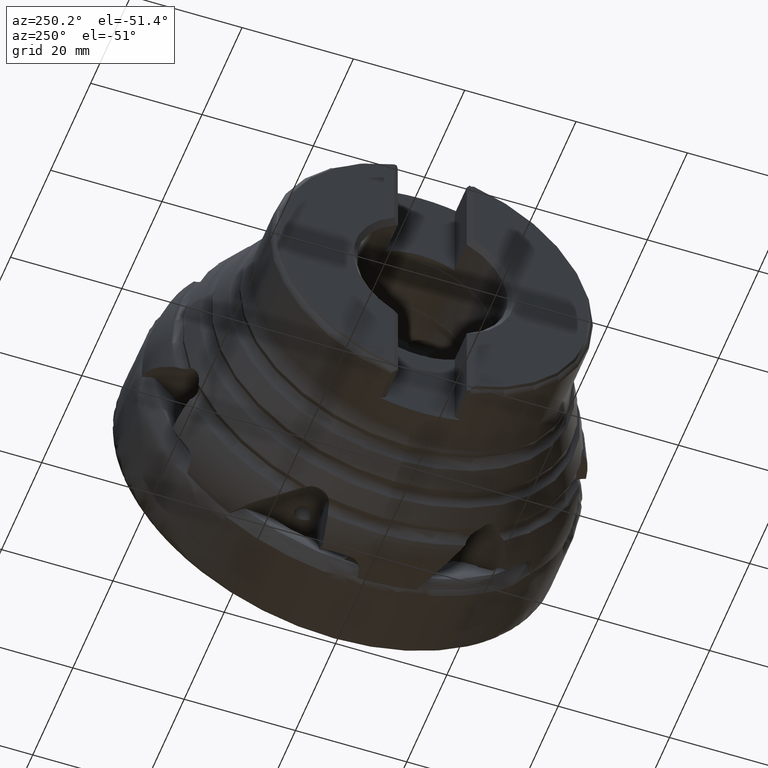
[diagram: clean part render]
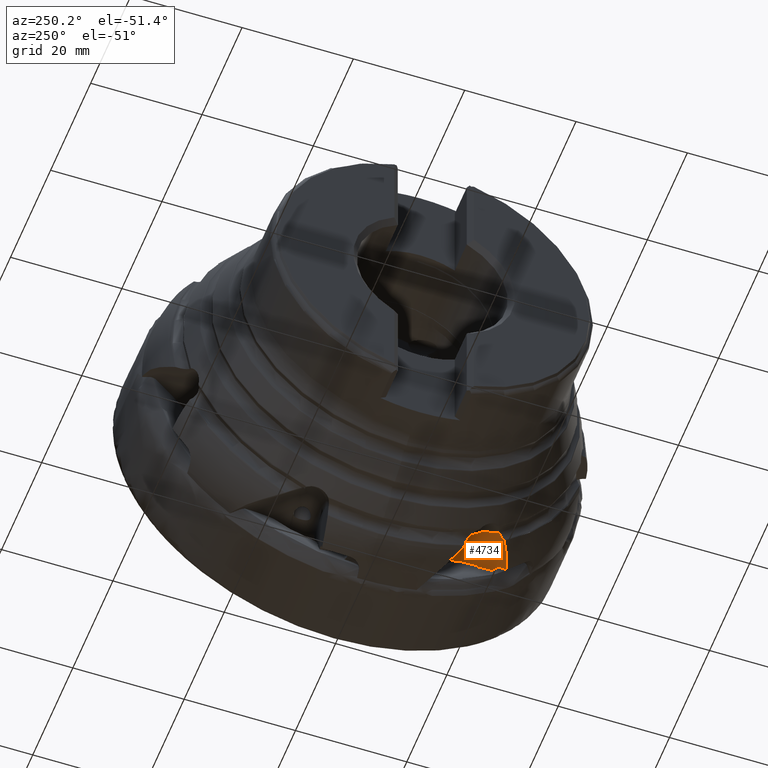
[diagram: same view with one face highlighted and labeled with its STEP entity id]
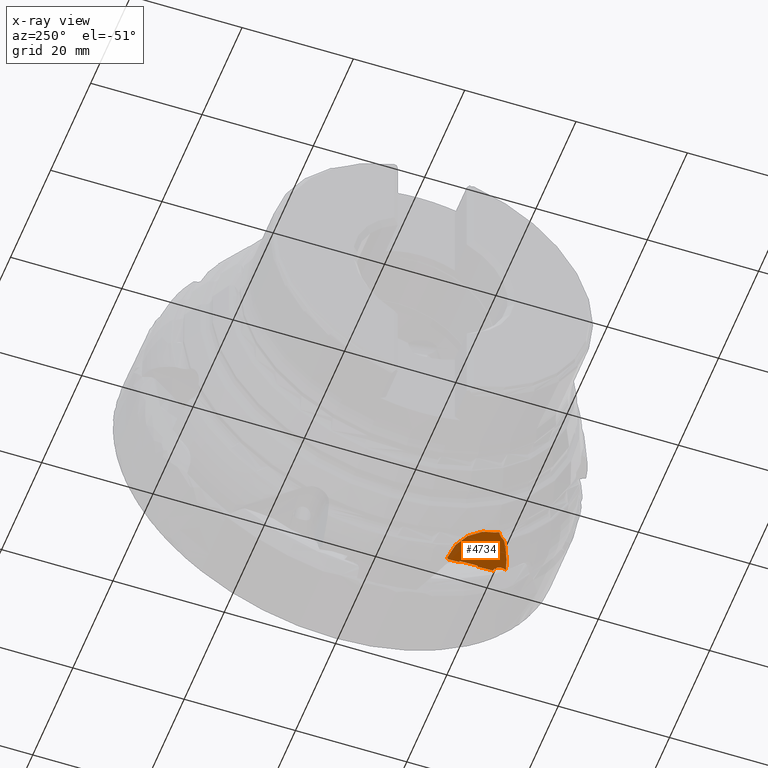
[diagram: x-ray of the same camera — body ghosted, the highlighted face saturated]
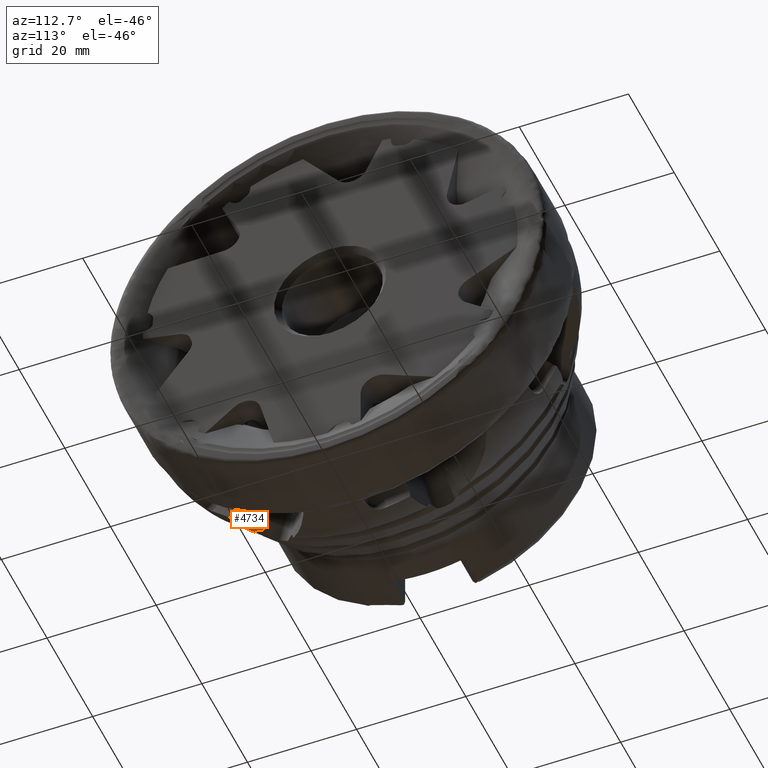
[diagram: same view with one face highlighted and labeled with its STEP entity id]
A machine part, auxiliary view. The second image highlights one B-rep face of the part: STEP entity #4734.
The next image is the same camera in x-ray: the body ghosted, the highlighted face saturated — about 5% of this face is hidden behind the body in this view.
A second angle (auxiliary view) of the same face is appended — the face is thin or edge-on in the first view.
In plain terms, the highlighted planar face has unit normal (-0.1638, -0.6151, 0.7713).
Its self-contained STEP definition (entity closure, byte-faithful):
#97 = ORIENTED_EDGE ( 'NONE', *, *, #9055, .T. ) ;
#346 = ORIENTED_EDGE ( 'NONE', *, *, #15646, .T. ) ;
#565 = CARTESIAN_POINT ( 'NONE',  ( -21.14160285398321900, -22.73550970672356900, -29.71567119495712800 ) ) ;
#817 = CARTESIAN_POINT ( 'NONE',  ( -12.43261193752961800, -21.00088352587655600, -26.48227463218263700 ) ) ;
#1045 = DIRECTION ( 'NONE',  ( 0.1638425078055066300, 0.6150642780949868700, -0.7712662098442374400 ) ) ;
#1101 = DIRECTION ( 'NONE',  ( 0.8611258527220790900, -0.4705966382831377500, -0.1923566214360238600 ) ) ;
#1162 = CARTESIAN_POINT ( 'NONE',  ( -9.198426334395453100, -16.72364546987626400, -22.38424288032031800 ) ) ;
#1200 = CARTESIAN_POINT ( 'NONE',  ( -10.50754404923196200, -18.47031920036145500, -24.05526869484428700 ) ) ;
#1320 = CARTESIAN_POINT ( 'NONE',  ( -13.92128072467505700, -23.27830195864172300, -28.61469782232702000 ) ) ;
#1398 = CARTESIAN_POINT ( 'NONE',  ( -8.179293523514667500, -30.09575054204051300, -32.83164323891602300 ) ) ;
#1466 = PLANE ( 'NONE',  #12133 ) ;
#1661 = ORIENTED_EDGE ( 'NONE', *, *, #7680, .F. ) ;
#1953 = CARTESIAN_POINT ( 'NONE',  ( -8.630400510395633200, -16.32326790388483300, -21.94428491280752500 ) ) ;
#2159 = CARTESIAN_POINT ( 'NONE',  ( -20.92614182972204200, -22.85685348724444000, -29.76666856748046500 ) ) ;
#2162 = CARTESIAN_POINT ( 'NONE',  ( -9.133446256174314800, -16.98453789135284700, -22.57849372132767100 ) ) ;
#2210 = B_SPLINE_CURVE_WITH_KNOTS ( 'NONE', 3,
 ( #13301, #7685, #9665, #13629, #11565, #23155 ),
 .UNSPECIFIED., .F., .F.,
 ( 4, 2, 4 ),
 ( 0.002660664059138238200, 0.005175454664293918000, 0.007690245269449598100 ),
 .UNSPECIFIED. ) ;
#2442 = EDGE_CURVE ( 'NONE', #7026, #3863, #4425, .T. ) ;
#2645 = B_SPLINE_CURVE_WITH_KNOTS ( 'NONE', 3,
 ( #21751, #10331, #7194, #20501 ),
 .UNSPECIFIED., .F., .F.,
 ( 4, 4 ),
 ( 3.382036590127678300E-006, 0.0002985361459002456200 ),
 .UNSPECIFIED. ) ;
#2746 = CARTESIAN_POINT ( 'NONE',  ( -9.133446256174314800, -16.98453789135284700, -22.57849372132767100 ) ) ;
#2853 = EDGE_CURVE ( 'NONE', #17252, #14294, #16914, .T. ) ;
#3394 = LINE ( 'NONE', #817, #9901 ) ;
#3843 = DIRECTION ( 'NONE',  ( 0.4812669720744132100, 0.6326410813787726200, 0.6067514843345858100 ) ) ;
#3863 = VERTEX_POINT ( 'NONE', #7378 ) ;
#4013 = EDGE_CURVE ( 'NONE', #22316, #11634, #3394, .T. ) ;
#4425 = B_SPLINE_CURVE_WITH_KNOTS ( 'NONE', 3,
 ( #16306, #10478, #19976, #4747, #16483, #10722, #23806, #18061 ),
 .UNSPECIFIED., .F., .F.,
 ( 4, 2, 2, 4 ),
 ( 0.003401072351581574800, 0.004117807505345807100, 0.004476175082227921300, 0.004834542659110034600 ),
 .UNSPECIFIED. ) ;
#4734 = ADVANCED_FACE ( 'NONE', ( #6349 ), #1466, .F. ) ;
#4747 = CARTESIAN_POINT ( 'NONE',  ( -21.82285997878989300, -21.77611186915676800, -29.09529854479673700 ) ) ;
#4899 = VERTEX_POINT ( 'NONE', #15061 ) ;
#5127 = VECTOR ( 'NONE', #18658, 1000.000000000000000 ) ;
#5234 = EDGE_CURVE ( 'NONE', #3863, #17924, #21496, .T. ) ;
#5686 = VECTOR ( 'NONE', #17801, 1000.000000000000000 ) ;
#5870 = B_SPLINE_CURVE_WITH_KNOTS ( 'NONE', 3,
 ( #23183, #2159, #565, #6139 ),
 .UNSPECIFIED., .F., .F.,
 ( 4, 4 ),
 ( 2.342862192463819400E-007, 0.0007576879588108050000 ),
 .UNSPECIFIED. ) ;
#5985 = EDGE_CURVE ( 'NONE', #20947, #17924, #24493, .T. ) ;
#6118 = CARTESIAN_POINT ( 'NONE',  ( -21.51366886119037900, -22.41158329713941200, -29.53638765600278800 ) ) ;
#6139 = CARTESIAN_POINT ( 'NONE',  ( -21.35698739462251800, -22.61406954113725500, -29.66458071025255400 ) ) ;
#6181 = CARTESIAN_POINT ( 'NONE',  ( -12.43261193752961800, -21.00088352587655600, -26.48227463218263700 ) ) ;
#6349 = FACE_OUTER_BOUND ( 'NONE', #12347, .T. ) ;
#6594 = CARTESIAN_POINT ( 'NONE',  ( -8.179293523514667500, -30.09575054204051300, -32.83164323891602300 ) ) ;
#6629 = LINE ( 'NONE', #1953, #5127 ) ;
#6810 = VERTEX_POINT ( 'NONE', #20376 ) ;
#7026 = VERTEX_POINT ( 'NONE', #6118 ) ;
#7194 = CARTESIAN_POINT ( 'NONE',  ( -21.50085350608038900, -22.48937823493660900, -29.59570464247529700 ) ) ;
#7378 = CARTESIAN_POINT ( 'NONE',  ( -22.26003932203251200, -21.41834940323840500, -28.90286388218926900 ) ) ;
#7680 = EDGE_CURVE ( 'NONE', #12510, #20947, #20297, .T. ) ;
#7685 = CARTESIAN_POINT ( 'NONE',  ( -16.86014728812010000, -24.64190338900503700, -30.32644634752549700 ) ) ;
#8477 = CARTESIAN_POINT ( 'NONE',  ( -9.198426334395453100, -16.72364546987626400, -22.38424288032031800 ) ) ;
#8693 = ORIENTED_EDGE ( 'NONE', *, *, #2442, .T. ) ;
#9055 = EDGE_CURVE ( 'NONE', #6810, #4899, #5870, .T. ) ;
#9210 = ORIENTED_EDGE ( 'NONE', *, *, #5985, .F. ) ;
#9569 = ORIENTED_EDGE ( 'NONE', *, *, #2853, .T. ) ;
#9665 = CARTESIAN_POINT ( 'NONE',  ( -17.65977729811028500, -24.37941856146888900, -30.28698960169940700 ) ) ;
#9901 = VECTOR ( 'NONE', #23676, 1000.000000000000000 ) ;
#10304 = VERTEX_POINT ( 'NONE', #1200 ) ;
#10331 = CARTESIAN_POINT ( 'NONE',  ( -21.44199234680527500, -22.56614123839978300, -29.64441703371191000 ) ) ;
#10478 = CARTESIAN_POINT ( 'NONE',  ( -21.54484778670939000, -22.22231327297335200, -29.39207328567210500 ) ) ;
#10722 = CARTESIAN_POINT ( 'NONE',  ( -22.06567063947989400, -21.54685656365656900, -28.96405457207297100 ) ) ;
#11233 = EDGE_CURVE ( 'NONE', #10304, #12510, #21335, .T. ) ;
#11398 = ORIENTED_EDGE ( 'NONE', *, *, #17183, .T. ) ;
#11442 = CARTESIAN_POINT ( 'NONE',  ( -13.92128072467505700, -23.27830195864172300, -28.61469782232702000 ) ) ;
#11565 = CARTESIAN_POINT ( 'NONE',  ( -19.98468851705155900, -23.38647149710774200, -29.98902894705365800 ) ) ;
#11634 = VERTEX_POINT ( 'NONE', #21303 ) ;
#11761 = CARTESIAN_POINT ( 'NONE',  ( -16.04868169841183300, -24.85220062233698700, -30.32177060630286600 ) ) ;
#11803 = CARTESIAN_POINT ( 'NONE',  ( -12.43261193752961800, -21.00088352587655600, -26.48227463218263700 ) ) ;
#12133 = AXIS2_PLACEMENT_3D ( 'NONE', #1398, #20504, #18402 ) ;
#12176 = ORIENTED_EDGE ( 'NONE', *, *, #22160, .F. ) ;
#12347 = EDGE_LOOP ( 'NONE', ( #12176, #19675, #15863, #9569, #346, #97, #11398, #8693, #13202, #9210, #1661, #20589 ) ) ;
#12510 = VERTEX_POINT ( 'NONE', #12651 ) ;
#12651 = CARTESIAN_POINT ( 'NONE',  ( -10.33531887868754700, -18.56443852801808300, -24.09374001913149500 ) ) ;
#13202 = ORIENTED_EDGE ( 'NONE', *, *, #5234, .T. ) ;
#13301 = CARTESIAN_POINT ( 'NONE',  ( -16.04868169841183300, -24.85220062233698700, -30.32177060630286600 ) ) ;
#13596 = LINE ( 'NONE', #11803, #23160 ) ;
#13629 = CARTESIAN_POINT ( 'NONE',  ( -19.22949444710015100, -23.74865336900770900, -30.11743109927364500 ) ) ;
#14206 = AXIS2_PLACEMENT_3D ( 'NONE', #6594, #1045, #16223 ) ;
#14294 = VERTEX_POINT ( 'NONE', #22843 ) ;
#15061 = CARTESIAN_POINT ( 'NONE',  ( -21.35698739462251800, -22.61406954113725500, -29.66458071025255400 ) ) ;
#15345 = CARTESIAN_POINT ( 'NONE',  ( -15.96038421022588600, -23.90206088790729300, -29.54530213912520900 ) ) ;
#15646 = EDGE_CURVE ( 'NONE', #14294, #6810, #2210, .T. ) ;
#15863 = ORIENTED_EDGE ( 'NONE', *, *, #17278, .F. ) ;
#16007 = CARTESIAN_POINT ( 'NONE',  ( -9.163899632297180600, -16.89818612807799900, -22.51609979454657000 ) ) ;
#16223 = DIRECTION ( 'NONE',  ( 1.734723475976806300E-015, -0.7818314824680222500, -0.6234898018587429200 ) ) ;
#16306 = CARTESIAN_POINT ( 'NONE',  ( -21.51366886119037900, -22.41158329713941200, -29.53638765600278800 ) ) ;
#16483 = CARTESIAN_POINT ( 'NONE',  ( -21.89722805337453300, -21.69600020951253000, -29.04720987218012600 ) ) ;
#16914 =( BOUNDED_CURVE ( )  B_SPLINE_CURVE ( 3, ( #11442, #21277, #15345, #11761 ),
 .UNSPECIFIED., .F., .F. ) 
 B_SPLINE_CURVE_WITH_KNOTS ( ( 4, 4 ),
 ( 4.850866081361978400, 6.210640734679702600 ),
 .UNSPECIFIED. ) 
 CURVE ( )  GEOMETRIC_REPRESENTATION_ITEM ( )  RATIONAL_B_SPLINE_CURVE ( ( 1.000000000000000000, 0.8517623746839506600, 0.8517623746839506600, 1.000000000000000000 ) ) 
 REPRESENTATION_ITEM ( '' )  );
#17183 = EDGE_CURVE ( 'NONE', #4899, #7026, #2645, .T. ) ;
#17252 = VERTEX_POINT ( 'NONE', #1320 ) ;
#17278 = EDGE_CURVE ( 'NONE', #17252, #11634, #6629, .T. ) ;
#17801 = DIRECTION ( 'NONE',  ( 0.4812669720744141600, 0.6326410813787721700, 0.6067514843345855900 ) ) ;
#17924 = VERTEX_POINT ( 'NONE', #1162 ) ;
#18061 = CARTESIAN_POINT ( 'NONE',  ( -22.26003932203251200, -21.41834940323840500, -28.90286388218926900 ) ) ;
#18402 = DIRECTION ( 'NONE',  ( 0.9864865090998470300, -0.1021541327276949100, 0.1280972307688577300 ) ) ;
#18658 = DIRECTION ( 'NONE',  ( 0.4812669720744141600, 0.6326410813787721700, 0.6067514843345855900 ) ) ;
#19675 = ORIENTED_EDGE ( 'NONE', *, *, #4013, .T. ) ;
#19867 = CARTESIAN_POINT ( 'NONE',  ( -9.185609138178849200, -16.81102332813097500, -22.45120159973340500 ) ) ;
#19976 = CARTESIAN_POINT ( 'NONE',  ( -21.62944506555292500, -22.03313925504415800, -29.25918330664217100 ) ) ;
#20297 = LINE ( 'NONE', #23651, #5686 ) ;
#20376 = CARTESIAN_POINT ( 'NONE',  ( -20.71060675804169500, -22.97810353138658700, -29.81757545760995900 ) ) ;
#20468 = VECTOR ( 'NONE', #1101, 1000.000000000000000 ) ;
#20501 = CARTESIAN_POINT ( 'NONE',  ( -21.51366886119037900, -22.41158329713941200, -29.53638765600278800 ) ) ;
#20504 = DIRECTION ( 'NONE',  ( -0.1638425078055066300, -0.6150642780949867600, 0.7712662098442374400 ) ) ;
#20589 = ORIENTED_EDGE ( 'NONE', *, *, #11233, .F. ) ;
#20947 = VERTEX_POINT ( 'NONE', #2162 ) ;
#21277 = CARTESIAN_POINT ( 'NONE',  ( -15.12783551003777300, -23.28612280060555100, -28.87724696524361800 ) ) ;
#21303 = CARTESIAN_POINT ( 'NONE',  ( -12.26038676698520300, -21.09500285353318500, -26.52074595646984200 ) ) ;
#21335 = LINE ( 'NONE', #23862, #20468 ) ;
#21496 = CIRCLE ( 'NONE', #14206, 17.00000000000000700 ) ;
#21751 = CARTESIAN_POINT ( 'NONE',  ( -21.35698739462251800, -22.61406954113725500, -29.66458071025255400 ) ) ;
#22160 = EDGE_CURVE ( 'NONE', #22316, #10304, #13596, .T. ) ;
#22316 = VERTEX_POINT ( 'NONE', #6181 ) ;
#22843 = CARTESIAN_POINT ( 'NONE',  ( -16.04868169841183300, -24.85220062233698700, -30.32177060630286600 ) ) ;
#23155 = CARTESIAN_POINT ( 'NONE',  ( -20.71060675804169500, -22.97810353138658700, -29.81757545760995900 ) ) ;
#23160 = VECTOR ( 'NONE', #3843, 1000.000000000000100 ) ;
#23183 = CARTESIAN_POINT ( 'NONE',  ( -20.71060675804169500, -22.97810353138658700, -29.81757545760995900 ) ) ;
#23651 = CARTESIAN_POINT ( 'NONE',  ( -8.630400510395633200, -16.32326790388483300, -21.94428491280752500 ) ) ;
#23676 = DIRECTION ( 'NONE',  ( 0.8611258527220790900, -0.4705966382831377500, -0.1923566214360238600 ) ) ;
#23806 = CARTESIAN_POINT ( 'NONE',  ( -22.16008119290985300, -21.47801106085339000, -28.92920804657839200 ) ) ;
#23862 = CARTESIAN_POINT ( 'NONE',  ( -10.50754404923196200, -18.47031920036145500, -24.05526869484428700 ) ) ;
#24493 =( BOUNDED_CURVE ( )  B_SPLINE_CURVE ( 3, ( #2746, #16007, #19867, #8477 ),
 .UNSPECIFIED., .F., .F. ) 
 B_SPLINE_CURVE_WITH_KNOTS ( ( 4, 4 ),
 ( 4.443028179101559300, 4.608454062760431600 ),
 .UNSPECIFIED. ) 
 CURVE ( )  GEOMETRIC_REPRESENTATION_ITEM ( )  RATIONAL_B_SPLINE_CURVE ( ( 1.000000000000000000, 0.9977208229319218800, 0.9977208229319218800, 1.000000000000000000 ) ) 
 REPRESENTATION_ITEM ( '' )  );